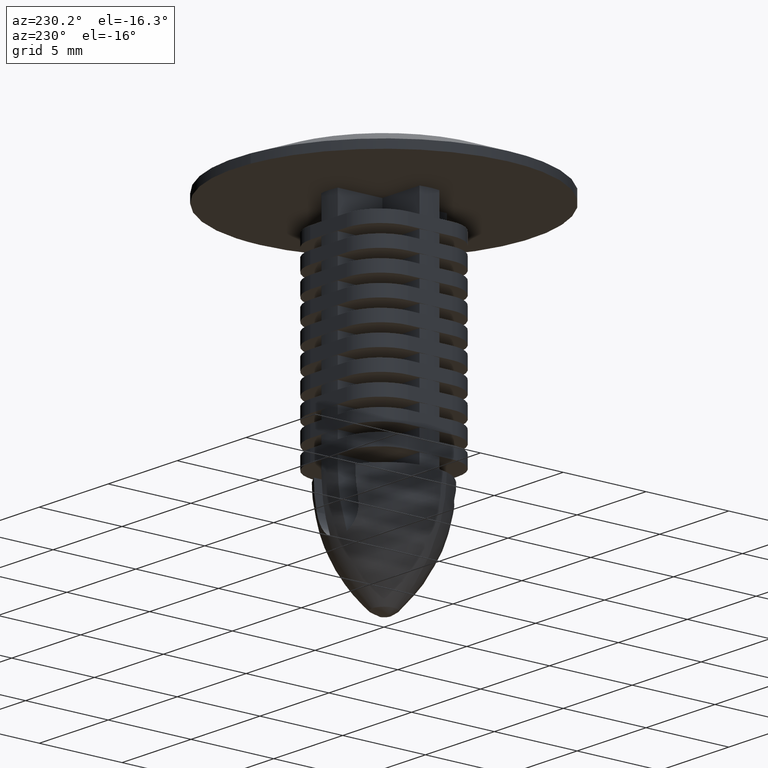
[diagram: clean part render]
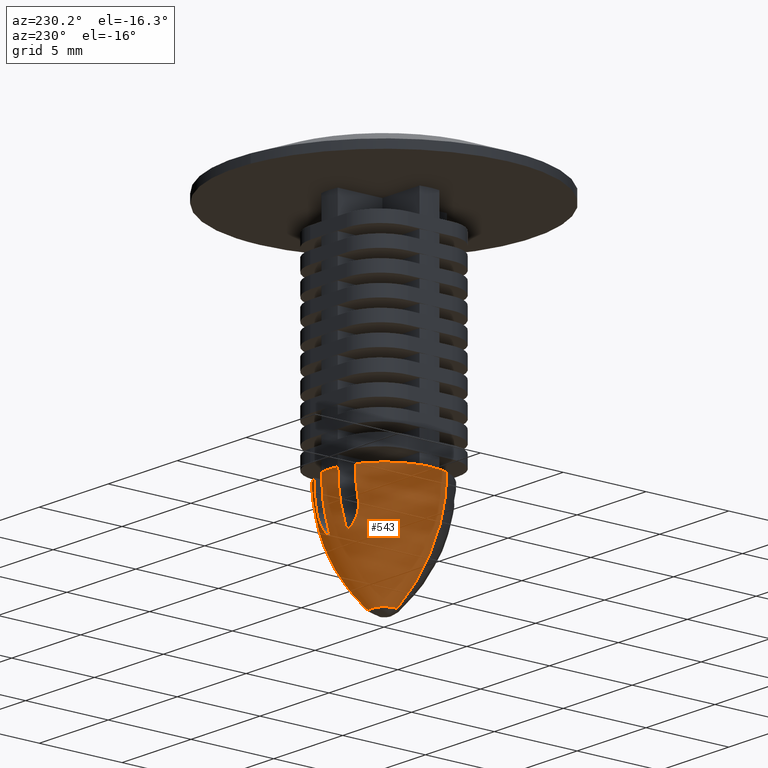
[diagram: same view with one face highlighted and labeled with its STEP entity id]
A machine part, auxiliary view. The second image highlights one B-rep face of the part: STEP entity #543.
In plain terms, the highlighted face is a freeform B-spline surface patch.
Its self-contained STEP definition (entity closure, byte-faithful):
#230=CARTESIAN_POINT('',(-0.412220712601261,-0.155678177264936,-22.453033217199064));
#231=CARTESIAN_POINT('',(-3.133956280274823,-1.183561588311337,-19.882363111998096));
#232=CARTESIAN_POINT('',(-3.133956280274822,-1.183561588311338,-16.000001253951147));
#233=CARTESIAN_POINT('',(-3.133956280274823,-1.183561588311337,-15.832063827635453));
#234=CARTESIAN_POINT('',(-3.127830718342282,-1.181248224894047,-15.664254099078823));
#235=CARTESIAN_POINT('',(-0.440637731900054,-0.080432666614993,-22.453033217199064));
#236=CARTESIAN_POINT('',(-3.350000000000008,-0.611498774738026,-19.882363111998092));
#237=CARTESIAN_POINT('',(-3.350000000000008,-0.611498774738026,-16.000001253951144));
#238=CARTESIAN_POINT('',(-3.350000000000009,-0.611498774738026,-15.832063827635446));
#239=CARTESIAN_POINT('',(-3.343452163770394,-0.610303552698744,-15.664254099078825));
#240=CARTESIAN_POINT('',(-0.440637731900054,0.0,-22.453033217199057));
#241=CARTESIAN_POINT('',(-3.350000000000008,0.0,-19.882363111998089));
#242=CARTESIAN_POINT('',(-3.350000000000009,0.0,-16.000001253951151));
#243=CARTESIAN_POINT('',(-3.350000000000009,0.0,-15.832063827635459));
#244=CARTESIAN_POINT('',(-3.343452163770394,0.0,-15.664254099078832));
#245=CARTESIAN_POINT('',(-0.440637731900057,0.440637731900054,-22.453033217199064));
#246=CARTESIAN_POINT('',(-3.350000000000009,3.350000000000009,-19.882363111998082));
#247=CARTESIAN_POINT('',(-3.350000000000009,3.350000000000009,-16.000001253951147));
#248=CARTESIAN_POINT('',(-3.350000000000009,3.350000000000009,-15.832063827635453));
#249=CARTESIAN_POINT('',(-3.343452163770393,3.343452163770393,-15.664254099078832));
#250=CARTESIAN_POINT('',(0.0,0.440637731900054,-22.453033217199057));
#251=CARTESIAN_POINT('',(0.0,3.350000000000008,-19.882363111998089));
#252=CARTESIAN_POINT('',(0.0,3.350000000000009,-16.000001253951151));
#253=CARTESIAN_POINT('',(0.0,3.350000000000009,-15.832063827635459));
#254=CARTESIAN_POINT('',(0.0,3.343452163770394,-15.664254099078832));
#255=CARTESIAN_POINT('',(0.440637731900054,0.440637731900057,-22.453033217199064));
#256=CARTESIAN_POINT('',(3.350000000000009,3.350000000000009,-19.882363111998082));
#257=CARTESIAN_POINT('',(3.350000000000009,3.350000000000009,-16.000001253951147));
#258=CARTESIAN_POINT('',(3.350000000000009,3.350000000000009,-15.832063827635453));
#259=CARTESIAN_POINT('',(3.343452163770393,3.343452163770393,-15.664254099078832));
#260=CARTESIAN_POINT('',(0.440637731900054,0.0,-22.453033217199057));
#261=CARTESIAN_POINT('',(3.350000000000008,0.0,-19.882363111998089));
#262=CARTESIAN_POINT('',(3.350000000000009,0.0,-16.000001253951151));
#263=CARTESIAN_POINT('',(3.350000000000009,0.0,-15.832063827635459));
#264=CARTESIAN_POINT('',(3.343452163770394,0.0,-15.664254099078832));
#272=(BOUNDED_SURFACE()B_SPLINE_SURFACE(2,2,((#230,#235,#240,#245,#250,#255,#260),(#231,#236,#241,#246,#251,#256,#261),(#232,#237,#242,#247,#252,#257,#262),(#233,#238,#243,#248,#253,#258,#263),(#234,#239,#244,#249,#254,#259,#264)),.UNSPECIFIED.,.F.,.F.,.U.)B_SPLINE_SURFACE_WITH_KNOTS((3,2,3),(3,2,2,3),(0.0,7.405683410211916,7.758000126022885),(0.0,1.332110816591877,6.882572552391364,12.433034288190850),.UNSPECIFIED.)GEOMETRIC_REPRESENTATION_ITEM()RATIONAL_B_SPLINE_SURFACE(((0.880493582555855,0.916528576450700,0.985826641633093,0.697084703373120,0.985826641633093,0.697084703373120,0.985826641633093),(0.808434472732928,0.841520382575394,0.905147132272444,0.640035675201402,0.905147132272444,0.640035675201402,0.905147132272444),(0.893152553776853,0.929705627484771,1.0,0.707106781186548,1.0,0.707106781186548,1.0),(0.889122190280346,0.925510317727590,0.995487485895367,0.703915951862962,0.995487485895367,0.703915951862962,0.995487485895367),(0.885446655771333,0.921684358654201,0.991372248813561,0.701006039816226,0.991372248813561,0.701006039816226,0.991372248813561)))REPRESENTATION_ITEM('')SURFACE());
#273=CARTESIAN_POINT('',(-0.646664097964153,-0.244217442504186,-22.222622574502719));
#274=VERTEX_POINT('',#273);
#275=CARTESIAN_POINT('',(-0.691242804495375,0.0,-22.222622574538999));
#276=VERTEX_POINT('',#275);
#277=CARTESIAN_POINT('',(-0.646664097964153,-0.244217442504186,-22.222622574502726));
#278=CARTESIAN_POINT('',(-0.691242804495375,-0.126177351886648,-22.222622574538999));
#279=CARTESIAN_POINT('',(-0.691242804495375,0.0,-22.222622574538999));
#287=(BOUNDED_CURVE()B_SPLINE_CURVE(2,(#277,#278,#279),.UNSPECIFIED.,.F.,.U.)B_SPLINE_CURVE_WITH_KNOTS((3,3),(0.939999999891143,1.0),.UNSPECIFIED.)CURVE()GEOMETRIC_REPRESENTATION_ITEM()RATIONAL_B_SPLINE_CURVE((0.893152553644217,0.929705627357237,1.0))REPRESENTATION_ITEM(''));
#288=EDGE_CURVE('',#274,#276,#287,.T.);
#289=ORIENTED_EDGE('',*,*,#288,.F.);
#290=CARTESIAN_POINT('',(-3.133956430944547,-1.183561189352229,-16.000000626975570));
#291=VERTEX_POINT('',#290);
#292=CARTESIAN_POINT('',(-0.646664097964153,-0.244217442504186,-22.222622574502719));
#293=CARTESIAN_POINT('',(-3.133956280274823,-1.183561588311337,-19.679319306924349));
#294=CARTESIAN_POINT('',(-3.133956430944546,-1.183561189352229,-16.000000626975577));
#302=(BOUNDED_CURVE()B_SPLINE_CURVE(2,(#292,#293,#294),.UNSPECIFIED.,.F.,.U.)B_SPLINE_CURVE_WITH_KNOTS((3,3),(0.059366137791939,0.500000000000000),.UNSPECIFIED.)CURVE()GEOMETRIC_REPRESENTATION_ITEM()RATIONAL_B_SPLINE_CURVE((0.873992091231683,0.812464878707263,0.893152553776853))REPRESENTATION_ITEM(''));
#303=EDGE_CURVE('',#274,#291,#302,.T.);
#304=ORIENTED_EDGE('',*,*,#303,.T.);
#305=CARTESIAN_POINT('',(-3.295830699535400,-0.599999999999991,-16.0));
#306=VERTEX_POINT('',#305);
#307=CARTESIAN_POINT('',(-3.133956430944547,-1.183561189352228,-16.000000626975574));
#308=CARTESIAN_POINT('',(-3.241375325053115,-0.899126158288520,-16.000000000000004));
#309=CARTESIAN_POINT('',(-3.295830699535400,-0.599999999999991,-16.0));
#317=(BOUNDED_CURVE()B_SPLINE_CURVE(2,(#307,#308,#309),.UNSPECIFIED.,.F.,.U.)B_SPLINE_CURVE_WITH_KNOTS((3,3),(0.801143766342725,1.0),.UNSPECIFIED.)CURVE()GEOMETRIC_REPRESENTATION_ITEM()RATIONAL_B_SPLINE_CURVE((0.966421341566298,0.979043300438453,1.0))REPRESENTATION_ITEM(''));
#318=EDGE_CURVE('',#291,#306,#317,.T.);
#319=ORIENTED_EDGE('',*,*,#318,.T.);
#320=CARTESIAN_POINT('',(-3.295830699535400,0.600000000000000,-16.0));
#321=VERTEX_POINT('',#320);
#322=CARTESIAN_POINT('',(-3.295830699535401,-0.599999999999993,-16.0));
#323=CARTESIAN_POINT('',(-3.405059611096526,3.686287E-015,-16.000000000000004));
#324=CARTESIAN_POINT('',(-3.295830699535400,0.600000000000000,-16.0));
#332=(BOUNDED_CURVE()B_SPLINE_CURVE(2,(#322,#323,#324),.UNSPECIFIED.,.F.,.U.)CURVE()GEOMETRIC_REPRESENTATION_ITEM()QUASI_UNIFORM_CURVE()RATIONAL_B_SPLINE_CURVE((1.0,0.983830059562806,1.0))REPRESENTATION_ITEM(''));
#333=EDGE_CURVE('',#306,#321,#332,.T.);
#334=ORIENTED_EDGE('',*,*,#333,.T.);
#335=CARTESIAN_POINT('',(-1.500000000000000,2.995413160149935,-16.0));
#336=VERTEX_POINT('',#335);
#337=CARTESIAN_POINT('',(-3.295830699535400,0.600000000000000,-16.0));
#338=CARTESIAN_POINT('',(-2.996143745150289,2.246195774187356,-16.0));
#339=CARTESIAN_POINT('',(-1.499999999999998,2.995413160149933,-16.0));
#347=(BOUNDED_CURVE()B_SPLINE_CURVE(2,(#337,#338,#339),.UNSPECIFIED.,.F.,.U.)CURVE()GEOMETRIC_REPRESENTATION_ITEM()QUASI_UNIFORM_CURVE()RATIONAL_B_SPLINE_CURVE((1.0,0.894613816342989,1.0))REPRESENTATION_ITEM(''));
#348=EDGE_CURVE('',#321,#336,#347,.T.);
#349=ORIENTED_EDGE('',*,*,#348,.T.);
#350=CARTESIAN_POINT('',(-1.500000000000000,2.821270196429195,-17.625227291513252));
#351=VERTEX_POINT('',#350);
#352=CARTESIAN_POINT('',(-1.500000000000000,2.995413160149941,-16.0));
#353=CARTESIAN_POINT('',(-1.500000000000000,2.995413204663491,-16.273328913435400));
#354=CARTESIAN_POINT('',(-1.500000000000000,2.980913768678940,-16.545936521120169));
#355=CARTESIAN_POINT('',(-1.500000000000000,2.937271023615673,-16.953758792029149));
#356=CARTESIAN_POINT('',(-1.500000000000000,2.919005433577717,-17.089811120444221));
#357=CARTESIAN_POINT('',(-1.500000000000000,2.875440936999294,-17.359116574539069));
#358=CARTESIAN_POINT('',(-1.500000000000000,2.850116140327324,-17.492702240445059));
#359=CARTESIAN_POINT('',(-1.500000000000000,2.821270196429190,-17.625227291513252));
#360=B_SPLINE_CURVE_WITH_KNOTS('',3,(#352,#353,#354,#355,#356,#357,#358,#359),.UNSPECIFIED.,.F.,.U.,(4,2,2,4),(0.0,0.500000000000000,0.750000000000000,1.0),.UNSPECIFIED.);
#361=EDGE_CURVE('',#336,#351,#360,.T.);
#362=ORIENTED_EDGE('',*,*,#361,.T.);
#363=CARTESIAN_POINT('',(-0.599999999999988,2.745732762280630,-19.0));
#364=VERTEX_POINT('',#363);
#365=CARTESIAN_POINT('',(-1.500000000000000,2.821270196429190,-17.625227291513252));
#366=CARTESIAN_POINT('',(-1.499999999999997,2.790057297040187,-17.768626692833649));
#367=CARTESIAN_POINT('',(-1.479857566270847,2.765860456900137,-17.909929155618251));
#368=CARTESIAN_POINT('',(-1.428635318252529,2.744585311481924,-18.083829216316889));
#369=CARTESIAN_POINT('',(-1.417017207282522,2.740771684161412,-18.118565087473758));
#370=CARTESIAN_POINT('',(-1.391471640313462,2.734138335899086,-18.186588691024550));
#371=CARTESIAN_POINT('',(-1.377513864687039,2.731300218440426,-18.220006397626818));
#372=CARTESIAN_POINT('',(-1.332140938689186,2.724112654686732,-18.318500000744979));
#373=CARTESIAN_POINT('',(-1.297243774238338,2.721090709169736,-18.381825647906378));
#374=CARTESIAN_POINT('',(-1.218018396171995,2.718005875033786,-18.503699641267929));
#375=CARTESIAN_POINT('',(-1.173358475382272,2.717966482322666,-18.562516526749960));
#376=CARTESIAN_POINT('',(-1.077256209752703,2.720095400434497,-18.671554334455010));
#377=CARTESIAN_POINT('',(-1.025578034178893,2.722238285177106,-18.722244013755400));
#378=CARTESIAN_POINT('',(-0.942646373096603,2.726408359693513,-18.792588338300028));
#379=CARTESIAN_POINT('',(-0.914096506775499,2.727958480352710,-18.815084311864350));
#380=CARTESIAN_POINT('',(-0.855144738257592,2.731275273593798,-18.858134274707162));
#381=CARTESIAN_POINT('',(-0.824709257891462,2.733043986621825,-18.878697943757938));
#382=CARTESIAN_POINT('',(-0.731732787155111,2.738451401760541,-18.936678118866251));
#383=CARTESIAN_POINT('',(-0.667174652368149,2.742207202435453,-18.970682578167160));
#384=CARTESIAN_POINT('',(-0.599999999999988,2.745732762280630,-19.0));
#385=B_SPLINE_CURVE_WITH_KNOTS('',3,(#365,#366,#367,#368,#369,#370,#371,#372,#373,#374,#375,#376,#377,#378,#379,#380,#381,#382,#383,#384),.UNSPECIFIED.,.F.,.U.,(4,2,2,2,2,2,2,2,2,4),(0.0,0.250000000000009,0.312500000000009,0.375000000000009,0.500000000000008,0.625000000000007,0.750000000000006,0.812500000000004,0.875000000000002,1.0),.UNSPECIFIED.);
#386=EDGE_CURVE('',#351,#364,#385,.T.);
#387=ORIENTED_EDGE('',*,*,#386,.T.);
#388=CARTESIAN_POINT('',(-0.599999999999991,3.295830699535400,-16.0));
#389=VERTEX_POINT('',#388);
#390=CARTESIAN_POINT('',(-0.600000000000009,2.745732762280619,-18.999999999999961));
#391=CARTESIAN_POINT('',(-0.600000000000009,2.835569811217700,-18.763859838262668));
#392=CARTESIAN_POINT('',(-0.600000000000009,2.914775245168330,-18.523485190039128));
#393=CARTESIAN_POINT('',(-0.600000000000009,3.017495992514557,-18.156515734631540));
#394=CARTESIAN_POINT('',(-0.600000000000009,3.049050095833043,-18.033122712626628));
#395=CARTESIAN_POINT('',(-0.600000000000009,3.085083670803928,-17.877523636341799));
#396=CARTESIAN_POINT('',(-0.600000000000009,3.092119836093876,-17.846335892513430));
#397=CARTESIAN_POINT('',(-0.600000000000009,3.105849390739695,-17.783823879967240));
#398=CARTESIAN_POINT('',(-0.600000000000009,3.112527662963392,-17.752576901073802));
#399=CARTESIAN_POINT('',(-0.600000000000009,3.132282841699175,-17.657460647935871));
#400=CARTESIAN_POINT('',(-0.600000000000009,3.144699563661173,-17.594012836913080));
#401=CARTESIAN_POINT('',(-0.600000000000009,3.249742564576795,-17.022653343889090));
#402=CARTESIAN_POINT('',(-0.600000000000009,3.295830775385470,-16.512457643726759));
#403=CARTESIAN_POINT('',(-0.599999999999991,3.295830699535400,-16.0));
#404=B_SPLINE_CURVE_WITH_KNOTS('',3,(#390,#391,#392,#393,#394,#395,#396,#397,#398,#399,#400,#401,#402,#403),.UNSPECIFIED.,.F.,.U.,(4,2,2,2,2,2,4),(0.0,0.249999999999995,0.374999999999992,0.406249999999990,0.437499999999989,0.499999999999989,1.0),.UNSPECIFIED.);
#405=EDGE_CURVE('',#364,#389,#404,.T.);
#406=ORIENTED_EDGE('',*,*,#405,.T.);
#407=CARTESIAN_POINT('',(0.600000000000009,3.295830699535320,-16.0));
#408=VERTEX_POINT('',#407);
#409=CARTESIAN_POINT('',(-0.599999999999991,3.295830699535401,-16.0));
#410=CARTESIAN_POINT('',(1.604619E-014,3.405059611096528,-16.000000000000004));
#411=CARTESIAN_POINT('',(0.600000000000009,3.295830699535320,-16.0));
#419=(BOUNDED_CURVE()B_SPLINE_CURVE(2,(#409,#410,#411),.UNSPECIFIED.,.F.,.U.)CURVE()GEOMETRIC_REPRESENTATION_ITEM()QUASI_UNIFORM_CURVE()RATIONAL_B_SPLINE_CURVE((1.0,0.983830059562805,1.0))REPRESENTATION_ITEM(''));
#420=EDGE_CURVE('',#389,#408,#419,.T.);
#421=ORIENTED_EDGE('',*,*,#420,.T.);
#422=CARTESIAN_POINT('',(0.600000000000009,2.745732762280330,-19.000000000000750));
#423=VERTEX_POINT('',#422);
#424=CARTESIAN_POINT('',(0.600000000000009,3.295830699535320,-16.0));
#425=CARTESIAN_POINT('',(0.600000000000009,3.295830775537842,-16.513486965900690));
#426=CARTESIAN_POINT('',(0.600000000000009,3.249553311811440,-17.023428778580630));
#427=CARTESIAN_POINT('',(0.600000000000009,3.144876366745091,-17.593082690397178));
#428=CARTESIAN_POINT('',(0.600000000000009,3.132508486333103,-17.656321102280909));
#429=CARTESIAN_POINT('',(0.600000000000009,3.106285366387104,-17.782683984900821));
#430=CARTESIAN_POINT('',(0.600000000000009,3.092605307555834,-17.844995982628511));
#431=CARTESIAN_POINT('',(0.600000000000009,3.049375502360831,-18.031811886654459));
#432=CARTESIAN_POINT('',(0.600000000000009,3.017818200647084,-18.155300933164071));
#433=CARTESIAN_POINT('',(0.600000000000009,2.915045478865586,-18.522646363084480));
#434=CARTESIAN_POINT('',(0.600000000000009,2.835749060682784,-18.763388674102099));
#435=CARTESIAN_POINT('',(0.600000000000009,2.745732762280330,-19.000000000000750));
#436=B_SPLINE_CURVE_WITH_KNOTS('',3,(#424,#425,#426,#427,#428,#429,#430,#431,#432,#433,#434,#435),.UNSPECIFIED.,.F.,.U.,(4,2,2,2,2,4),(0.0,0.499999999999997,0.562499999999997,0.624999999999998,0.750000000000000,1.0),.UNSPECIFIED.);
#437=EDGE_CURVE('',#408,#423,#436,.T.);
#438=ORIENTED_EDGE('',*,*,#437,.T.);
#439=CARTESIAN_POINT('',(1.500000000000000,2.821270196429195,-17.625227291513252));
#440=VERTEX_POINT('',#439);
#441=CARTESIAN_POINT('',(0.600000000000009,2.745732762280330,-19.000000000000750));
#442=CARTESIAN_POINT('',(0.734399069342676,2.738679030770174,-18.941343437276739));
#443=CARTESIAN_POINT('',(0.857084143893467,2.730731848104385,-18.864844372878601));
#444=CARTESIAN_POINT('',(0.996219322743208,2.723709475847806,-18.747223189289119));
#445=CARTESIAN_POINT('',(1.023425694110724,2.722451991722055,-18.722466578314531));
#446=CARTESIAN_POINT('',(1.075619125088157,2.720389877233142,-18.671352380405960));
#447=CARTESIAN_POINT('',(1.100649364878228,2.719581887506903,-18.644974859205270));
#448=CARTESIAN_POINT('',(1.172612302726307,2.717973792682595,-18.563436699043180));
#449=CARTESIAN_POINT('',(1.216433215997058,2.717987912717269,-18.505882775366270));
#450=CARTESIAN_POINT('',(1.275918967312282,2.720239748455959,-18.414750407962700));
#451=CARTESIAN_POINT('',(1.294702625585985,2.721362441556741,-18.383569634642321));
#452=CARTESIAN_POINT('',(1.330127254018362,2.724458901105563,-18.319561134991531));
#453=CARTESIAN_POINT('',(1.346703536259136,2.726432482419873,-18.286823635640161));
#454=CARTESIAN_POINT('',(1.392382765404642,2.733630283394700,-18.187855750750810));
#455=CARTESIAN_POINT('',(1.417752137977907,2.740155769462066,-18.120355034647002));
#456=CARTESIAN_POINT('',(1.448402693033708,2.752752572838165,-18.016919505506699));
#457=CARTESIAN_POINT('',(1.457380903926119,2.757419210656777,-17.982075285389630));
#458=CARTESIAN_POINT('',(1.472840831227579,2.767721267048565,-17.911652632101280));
#459=CARTESIAN_POINT('',(1.479336903810395,2.773375798265894,-17.875964976163239));
#460=CARTESIAN_POINT('',(1.494879754432395,2.791694391818130,-17.768624521974861));
#461=CARTESIAN_POINT('',(1.500000000000638,2.805653425633936,-17.696974409736981));
#462=CARTESIAN_POINT('',(1.500000000000000,2.821270196429195,-17.625227291513252));
#463=B_SPLINE_CURVE_WITH_KNOTS('',3,(#441,#442,#443,#444,#445,#446,#447,#448,#449,#450,#451,#452,#453,#454,#455,#456,#457,#458,#459,#460,#461,#462),.UNSPECIFIED.,.F.,.U.,(4,2,2,2,2,2,2,2,2,2,4),(0.0,0.249999999999996,0.312499999999996,0.374999999999996,0.499999999999996,0.562499999999995,0.624999999999995,0.749999999999995,0.812499999999998,0.875000000000000,1.0),.UNSPECIFIED.);
#464=EDGE_CURVE('',#423,#440,#463,.T.);
#465=ORIENTED_EDGE('',*,*,#464,.T.);
#466=CARTESIAN_POINT('',(1.500000000000000,2.995413160149935,-16.0));
#467=VERTEX_POINT('',#466);
#468=CARTESIAN_POINT('',(1.500000000000000,2.821270196429189,-17.625227291513252));
#469=CARTESIAN_POINT('',(1.500000000000000,2.850302920879862,-17.491844126654389));
#470=CARTESIAN_POINT('',(1.500000000000000,2.875702215074015,-17.357692455263749));
#471=CARTESIAN_POINT('',(1.500000000000000,2.908392420232623,-17.155320946847588));
#472=CARTESIAN_POINT('',(1.500000000000000,2.918386957442206,-17.087672953584640));
#473=CARTESIAN_POINT('',(1.500000000000000,2.936569980740262,-16.951994969336109));
#474=CARTESIAN_POINT('',(1.500000000000000,2.944779755826939,-16.883774637163420));
#475=CARTESIAN_POINT('',(1.500000000000000,2.981140284232677,-16.543078459701238));
#476=CARTESIAN_POINT('',(1.500000000000000,2.995413204318145,-16.271208376653249));
#477=CARTESIAN_POINT('',(1.500000000000000,2.995413160149939,-16.0));
#478=B_SPLINE_CURVE_WITH_KNOTS('',3,(#468,#469,#470,#471,#472,#473,#474,#475,#476,#477),.UNSPECIFIED.,.F.,.U.,(4,2,2,2,4),(0.0,0.249999999999995,0.374999999999996,0.499999999999997,1.0),.UNSPECIFIED.);
#479=EDGE_CURVE('',#440,#467,#478,.T.);
#480=ORIENTED_EDGE('',*,*,#479,.T.);
#481=CARTESIAN_POINT('',(3.295830699535400,0.599999999999991,-16.0));
#482=VERTEX_POINT('',#481);
#483=CARTESIAN_POINT('',(1.499999999999998,2.995413160149932,-16.0));
#484=CARTESIAN_POINT('',(2.996143745150293,2.246195774187353,-16.0));
#485=CARTESIAN_POINT('',(3.295830699535400,0.599999999999991,-16.0));
#493=(BOUNDED_CURVE()B_SPLINE_CURVE(2,(#483,#484,#485),.UNSPECIFIED.,.F.,.U.)CURVE()GEOMETRIC_REPRESENTATION_ITEM()QUASI_UNIFORM_CURVE()RATIONAL_B_SPLINE_CURVE((1.0,0.894613816342989,1.0))REPRESENTATION_ITEM(''));
#494=EDGE_CURVE('',#467,#482,#493,.T.);
#495=ORIENTED_EDGE('',*,*,#494,.T.);
#496=CARTESIAN_POINT('',(3.350000000000004,2.117141E-017,-16.000000626975570));
#497=VERTEX_POINT('',#496);
#498=CARTESIAN_POINT('',(3.295830699535402,0.599999999999991,-16.0));
#499=CARTESIAN_POINT('',(3.350000000000000,0.302445260927349,-16.000000000000004));
#500=CARTESIAN_POINT('',(3.350000000000004,2.117141E-017,-16.000000626975570));
#508=(BOUNDED_CURVE()B_SPLINE_CURVE(2,(#498,#499,#500),.UNSPECIFIED.,.F.,.U.)B_SPLINE_CURVE_WITH_KNOTS((3,3),(0.0,0.499999999999994),.UNSPECIFIED.)CURVE()GEOMETRIC_REPRESENTATION_ITEM()RATIONAL_B_SPLINE_CURVE((1.0,0.991915029781403,0.991915029781403))REPRESENTATION_ITEM(''));
#509=EDGE_CURVE('',#482,#497,#508,.T.);
#510=ORIENTED_EDGE('',*,*,#509,.T.);
#511=CARTESIAN_POINT('',(0.691239552805711,0.0,-22.222625685023981));
#512=VERTEX_POINT('',#511);
#513=CARTESIAN_POINT('',(0.691239552805711,0.0,-22.222625685023981));
#514=CARTESIAN_POINT('',(3.350000000000010,0.0,-19.679321967659604));
#515=CARTESIAN_POINT('',(3.350000000000004,2.117141E-017,-16.000000626975570));
#523=(BOUNDED_CURVE()B_SPLINE_CURVE(2,(#513,#514,#515),.UNSPECIFIED.,.F.,.U.)B_SPLINE_CURVE_WITH_KNOTS((3,3),(0.059365847930044,0.500000000000000),.UNSPECIFIED.)CURVE()GEOMETRIC_REPRESENTATION_ITEM()RATIONAL_B_SPLINE_CURVE((0.978547470401030,0.909659634508002,1.0))REPRESENTATION_ITEM(''));
#524=EDGE_CURVE('',#512,#497,#523,.T.);
#525=ORIENTED_EDGE('',*,*,#524,.F.);
#526=CARTESIAN_POINT('',(-0.691242804495375,0.0,-22.222622574538999));
#527=CARTESIAN_POINT('',(-0.691242804495375,0.691242804495375,-22.222622574538999));
#528=CARTESIAN_POINT('',(-0.000001625844832,0.691242804495375,-22.222624129781490));
#529=CARTESIAN_POINT('',(0.691239552805711,0.691242804495375,-22.222625685023978));
#530=CARTESIAN_POINT('',(0.691239552805711,0.0,-22.222625685023981));
#538=(BOUNDED_CURVE()B_SPLINE_CURVE(2,(#526,#527,#528,#529,#530),.UNSPECIFIED.,.F.,.U.)B_SPLINE_CURVE_WITH_KNOTS((3,2,3),(0.0,0.250000000000000,0.500000000000000),.UNSPECIFIED.)CURVE()GEOMETRIC_REPRESENTATION_ITEM()RATIONAL_B_SPLINE_CURVE((1.0,0.707106781186548,1.0,0.707106781186548,1.0))REPRESENTATION_ITEM(''));
#539=EDGE_CURVE('',#276,#512,#538,.T.);
#540=ORIENTED_EDGE('',*,*,#539,.F.);
#541=EDGE_LOOP('',(#289,#304,#319,#334,#349,#362,#387,#406,#421,#438,#465,#480,#495,#510,#525,#540));
#542=FACE_OUTER_BOUND('',#541,.T.);
#543=ADVANCED_FACE('',(#542),#272,.T.);